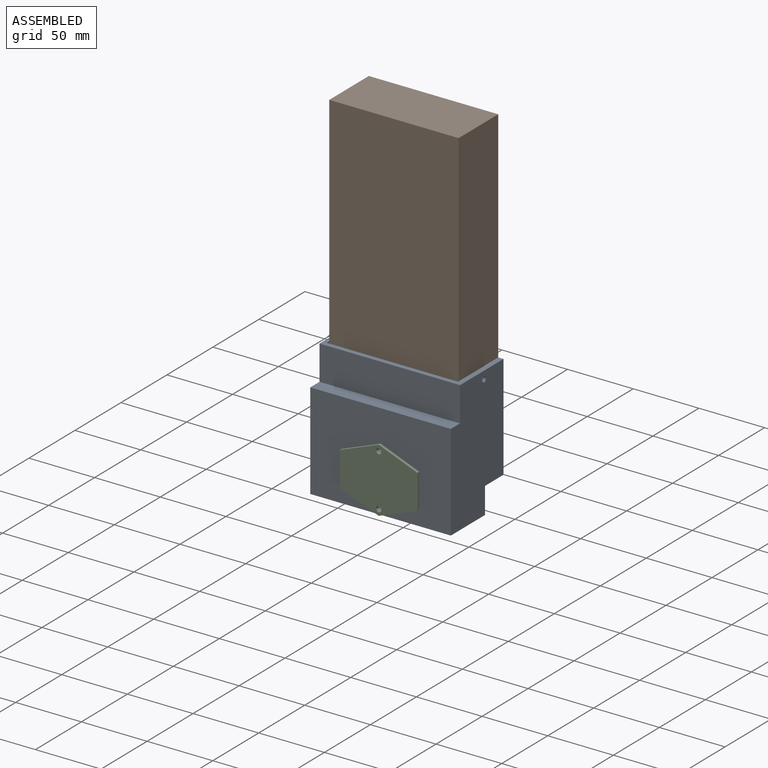
[diagram: assembled view]
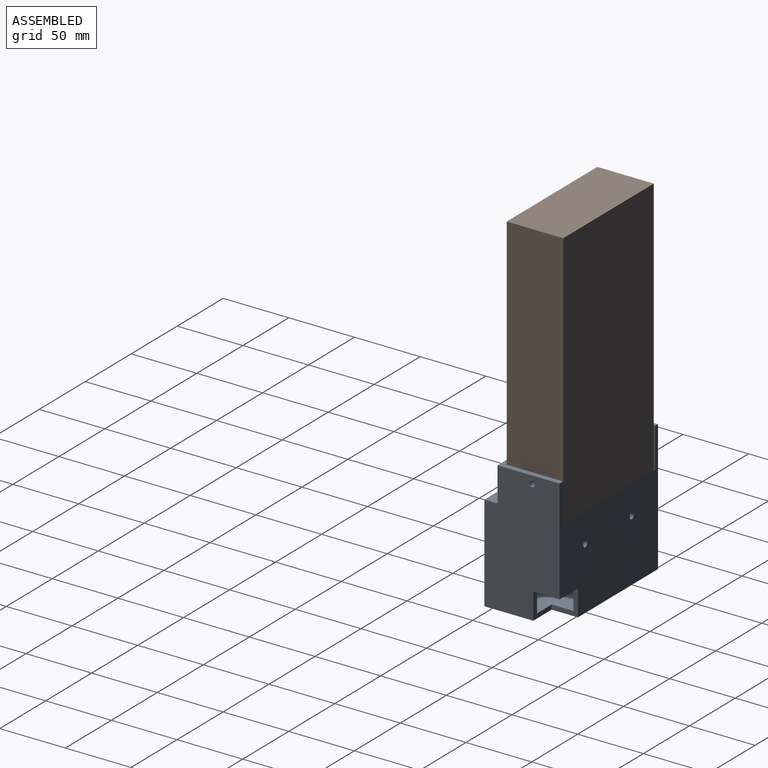
[diagram: assembled view, second angle]
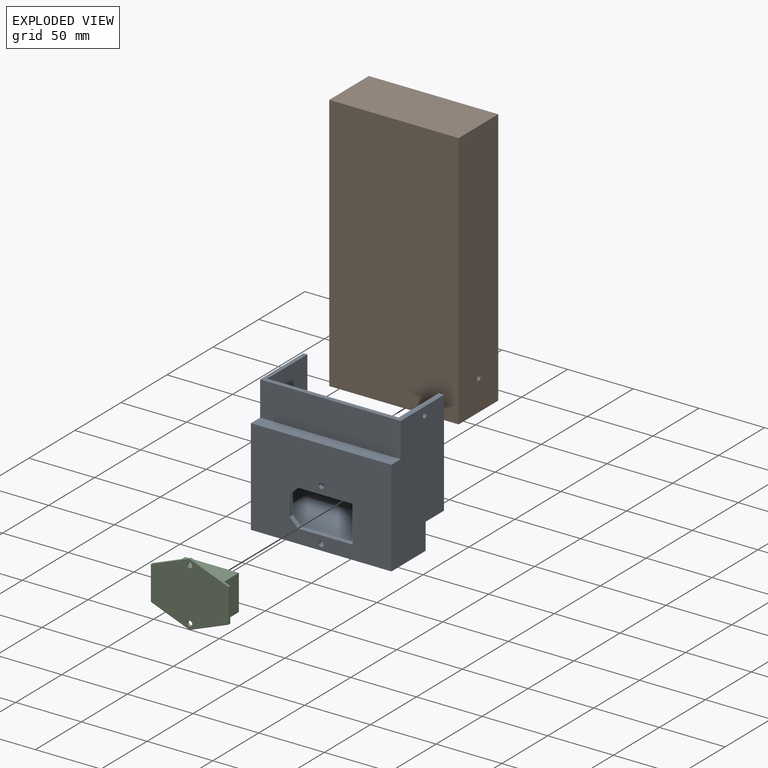
[diagram: exploded view]
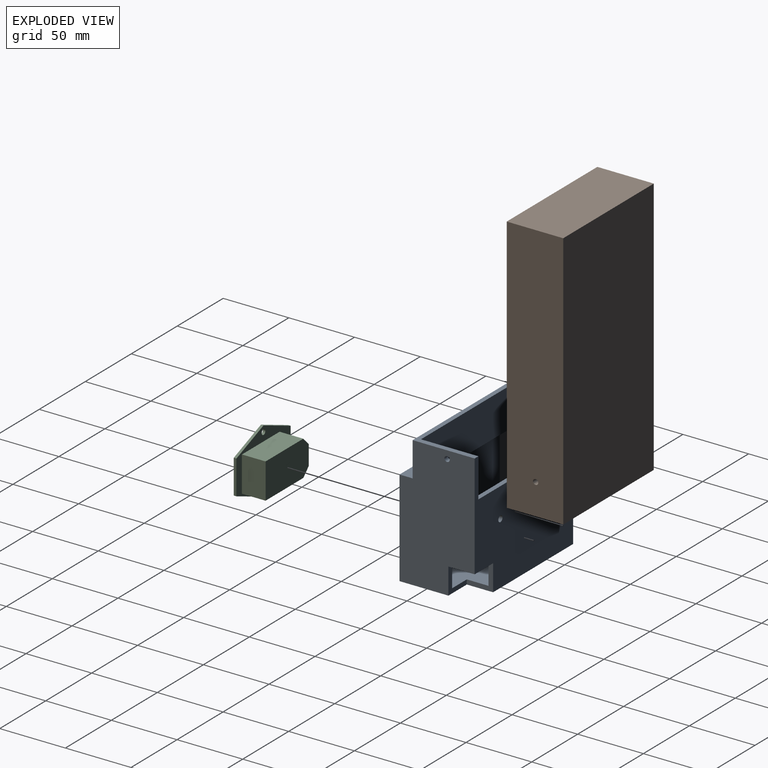
[diagram: exploded view, second angle]
ASSEMBLY  parts=3 mates=2
PART A: 31 faces, bbox 107x57.2x99.7 mm
  f0: plane 107x57.2mm, normal (0,0,-1), area 5720.4mm2, adj f1,f7,f8,f15,f28,f29
  f1: plane 99.7x57.2mm, normal (1,0,0), area 5027.1mm2, adj f0,f4,f5,f6,f7,f8,f9,f28
  f2: plane 96.2x53.7mm, normal (-1,0,0), area 4350.2mm2, adj f3,f4,f8,f9,f10,f11,f12,f13
  f3: plane 100x66.38mm, normal (0,1,0), area 5310.8mm2, adj f2,f11,f12,f16,f19,f20,f21,f22
  f4: plane 107x47.2mm, normal (0,0,1), area 680.4mm2, adj f1,f2,f5,f8,f10,f15,f16
  f5: plane 107x26.32mm, normal (0,-1,0), area 2816.4mm2, adj f1,f4,f6,f15
  f6: plane 107x10mm, normal (0,0,1), area 1070mm2, adj f1,f5,f7,f15
  f7: plane 107x73.38mm, normal (0,-1,0), area 6522mm2, adj f0,f1,f6,f15,f19,f20,f21,f22
  f8: plane 107x99.7mm, normal (0,1,0), area 7266.1mm2, adj f0,f1,f2,f4,f14,f15,f16,f17
  f9: cylinder r=2mm len=4mm, axis (-1,0,0), area 50.3mm2, adj f1,f2
  f10: plane 100x29.82mm, normal (0,1,0), area 2982.1mm2, adj f2,f4,f11,f16
  f11: plane 100x10mm, normal (0,0,-1), area 1000mm2, adj f2,f3,f10,f16
  f12: plane 100x50.2mm, normal (0,0,1), area 4756mm2, adj f2,f3,f13,f16,f25,f28,f29
  f13: plane 100x66.5mm, normal (0,-1,0), area 6354.2mm2, adj f2,f12,f14,f16,f17,f18,f29,f30
  f14: plane 100x3.5mm, normal (0,0,1), area 350mm2, adj f2,f8,f13,f16
  f15: plane 99.7x57.2mm, normal (-1,0,0), area 5439.6mm2, adj f0,f4,f5,f6,f7,f8
  f16: plane 96.2x53.7mm, normal (1,0,0), area 4635mm2, adj f3,f4,f8,f10,f11,f12,f13,f14
  f17: cylinder r=2.25mm len=4.5mm, axis (0,1,0), area 49.5mm2, adj f8,f13
  f18: cylinder r=2.25mm len=4.5mm, axis (0,1,0), area 49.5mm2, adj f8,f13
  f19: plane 41.71x3.5mm, normal (0,0,1), area 146mm2, adj f3,f7,f20,f22
  f20: plane 28x3.5mm, normal (-1,0,0), area 98mm2, adj f3,f7,f19,f21
  f21: plane 41.71x3.5mm, normal (0,0,-1), area 146mm2, adj f3,f7,f20,f23
  f22: plane 6.29x6.29mm, normal (0.71,0,0.71), area 31.1mm2, adj f3,f7,f19,f24
  f23: plane 6.29x6.29mm, normal (0.71,0,-0.71), area 31.1mm2, adj f3,f7,f21,f24
  f24: plane 15.41x3.5mm, normal (1,0,0), area 53.9mm2, adj f3,f7,f22,f23
  f25: plane 3.46x1mm, normal (0,-1,0), area 2.5mm2, adj f12,f26
  f26: cylinder r=2mm len=4mm, axis (0,-1,0), area 44mm2, adj f3,f7,f25
  f27: cylinder r=2mm len=4mm, axis (0,-1,0), area 44mm2, adj f3,f7
  f28: plane 20x20mm, normal (0,1,0), area 136mm2, adj f0,f1,f2,f12,f29,f30
  f29: plane 20x20mm, normal (1,0,0), area 127.8mm2, adj f0,f8,f12,f13,f28,f30
  f30: plane 20x20mm, normal (0,0,-1), area 136mm2, adj f1,f2,f8,f13,f28,f29
PART B: 8 faces, bbox 98.5x43x197 mm
  f0: plane 197x43mm, normal (-1,0,0), area 8471mm2, adj f1,f3,f4,f5
  f1: plane 98.5x43mm, normal (0,0,-1), area 4235.5mm2, adj f0,f2,f4,f5
  f2: plane 197x43mm, normal (1,0,0), area 8458.4mm2, adj f1,f3,f4,f5,f6
  f3: plane 98.5x43mm, normal (0,0,1), area 4235.5mm2, adj f0,f2,f4,f5
  f4: plane 197x98.5mm, normal (0,-1,0), area 19404.5mm2, adj f0,f1,f2,f3
  f5: plane 197x98.5mm, normal (0,1,0), area 19404.5mm2, adj f0,f1,f2,f3
  f6: cylinder r=2mm len=10mm, axis (1,0,0), area 125.7mm2, adj f2,f7
  f7: plane 4x4mm, normal (1,0,0), area 12.6mm2, adj f6
PART C: 17 faces, bbox 59x20x49 mm
  f0: plane 29.5x11.5mm, normal (0.36,0,-0.93), area 63.3mm2, adj f1,f7,f8,f9
  f1: plane 26x2mm, normal (1,0,0), area 52mm2, adj f0,f2,f8,f9
  f2: plane 29.5x11.5mm, normal (0.36,0,0.93), area 63.3mm2, adj f1,f3,f8,f9
  f3: plane 29.5x11.5mm, normal (-0.36,0,0.93), area 63.3mm2, adj f2,f4,f8,f9
  f4: plane 26x2mm, normal (-1,0,0), area 52mm2, adj f3,f7,f8,f9
  f5: cylinder r=2mm len=4mm, axis (0,1,0), area 25.1mm2, adj f8,f9
  f6: cylinder r=2mm len=4mm, axis (0,1,0), area 25.1mm2, adj f8,f9
  f7: plane 29.5x11.5mm, normal (-0.36,0,-0.93), area 63.3mm2, adj f0,f4,f8,f9
  f8: plane 59x49mm, normal (0,-1,0), area 954.4mm2, adj f0,f1,f2,f3,f4,f5,f6,f7
  f9: plane 59x49mm, normal (0,1,0), area 2187.4mm2, adj f0,f1,f2,f3,f4,f5,f6,f7
  f10: plane 47x27mm, normal (0,-1,0), area 1233mm2, adj f11,f12,f13,f14,f15,f16
  f11: plane 18x6mm, normal (-0.71,0,0.71), area 152.7mm2, adj f8,f10,f12,f16
  f12: plane 18x15mm, normal (-1,0,0), area 270mm2, adj f8,f10,f11,f13
  f13: plane 18x6mm, normal (-0.71,0,-0.71), area 152.7mm2, adj f8,f10,f12,f14
  f14: plane 41x18mm, normal (0,0,-1), area 738mm2, adj f8,f10,f13,f15
  f15: plane 27x18mm, normal (1,0,0), area 486mm2, adj f8,f10,f14,f16
  f16: plane 41x18mm, normal (0,0,1), area 738mm2, adj f8,f10,f11,f15
PLACE A t=(-6.37,-143.25,145.39)mm
PLACE B t=(-6.37,-143.25,145.39)mm
PLACE C rot(axis=(1,0,0),180deg) t=(-16.97,-202.45,29.02)mm
MATE fastened B.f6 <-> A.f9  axis (1,0,0) through (32.53,-164.25,98.22)mm
MATE fastened C.f6 <-> A.f27  axis (0,1,0) through (-16.97,-200.45,49.02)mm
